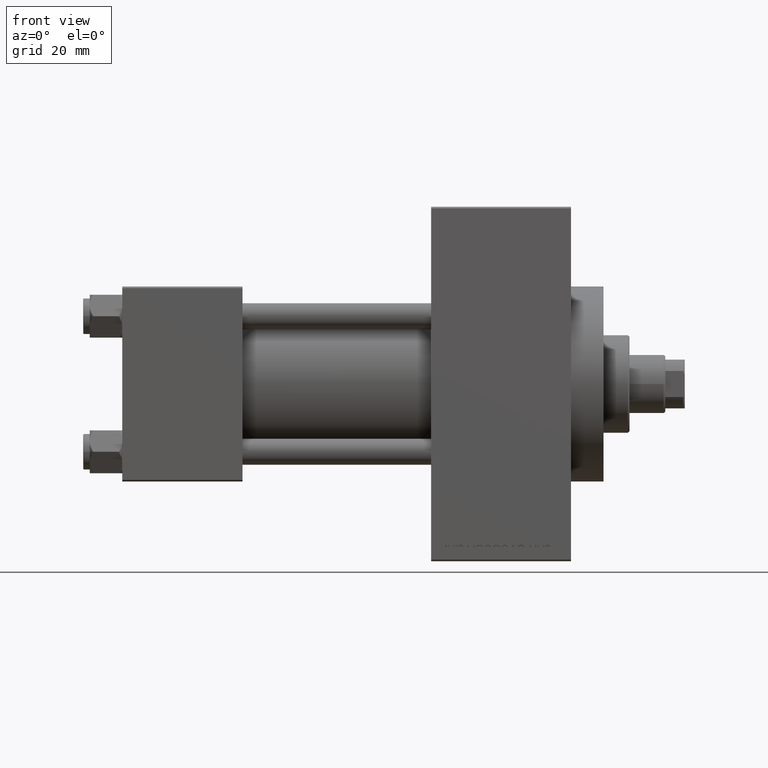
[diagram: clean part render]
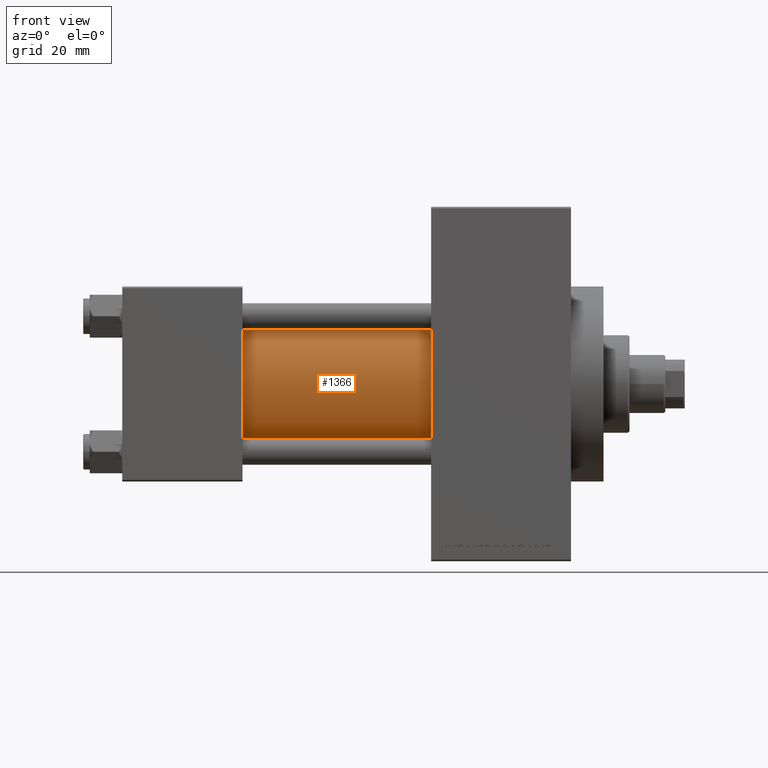
[diagram: same view with one face highlighted and labeled with its STEP entity id]
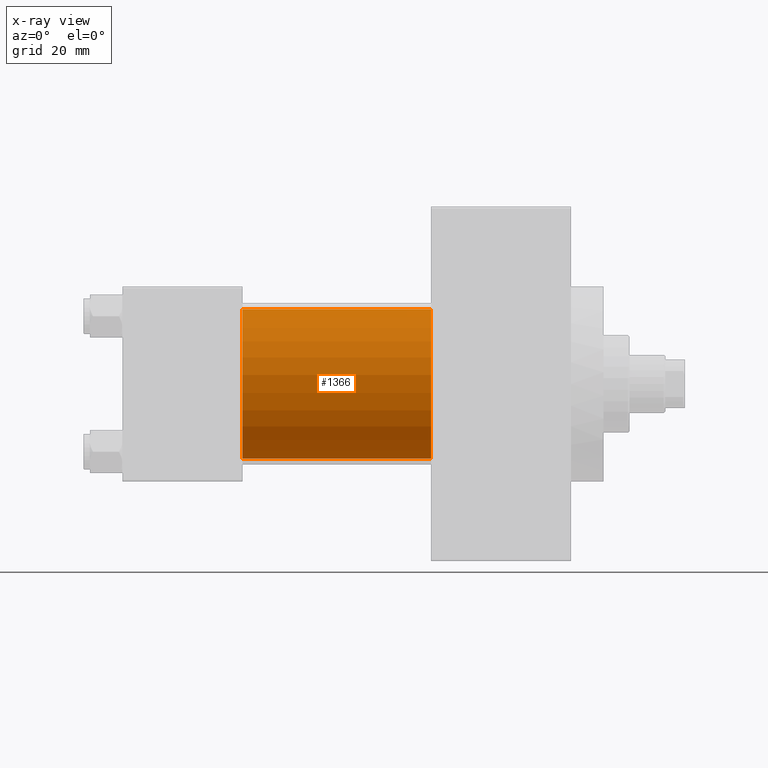
[diagram: x-ray of the same camera — body ghosted, the highlighted face saturated]
A machine part, front view. The second image highlights one B-rep face of the part: STEP entity #1366.
The next image is the same camera in x-ray: the body ghosted, the highlighted face saturated — about 0% of this face is hidden behind the body in this view.
In plain terms, the highlighted cylindrical surface (partial cylindrical patch) has radius 23 mm, axis along (-1, -0, -0).
Its self-contained STEP definition (entity closure, byte-faithful):
#453 = VECTOR ( 'NONE', #40718, 1000.000000000000000 ) ;
#1366 = ADVANCED_FACE ( 'NONE', ( #14664 ), #26686, .T. ) ;
#2426 = CIRCLE ( 'NONE', #30418, 23.00000000000000000 ) ;
#3891 = DIRECTION ( 'NONE',  ( -1.000000000000000000, -0.000000000000000000, -0.000000000000000000 ) ) ;
#4027 = DIRECTION ( 'NONE',  ( 1.000000000000000000, -0.000000000000000000, 0.000000000000000000 ) ) ;
#4964 = EDGE_CURVE ( 'NONE', #38718, #9677, #40766, .T. ) ;
#9677 = VERTEX_POINT ( 'NONE', #34973 ) ;
#9813 = ORIENTED_EDGE ( 'NONE', *, *, #24606, .T. ) ;
#10183 = CARTESIAN_POINT ( 'NONE',  ( 95.00000000000000000, -2.602085213965210642E-15, 23.00000000000000000 ) ) ;
#11277 = AXIS2_PLACEMENT_3D ( 'NONE', #37448, #3891, #19167 ) ;
#11545 = CARTESIAN_POINT ( 'NONE',  ( 37.00000000000000000, -2.602085213965210642E-15, 0.000000000000000000 ) ) ;
#13450 = LINE ( 'NONE', #10183, #453 ) ;
#14027 = EDGE_LOOP ( 'NONE', ( #23193, #22940, #48201, #9813 ) ) ;
#14664 = FACE_OUTER_BOUND ( 'NONE', #14027, .T. ) ;
#17729 = CIRCLE ( 'NONE', #47355, 23.00000000000000000 ) ;
#19167 = DIRECTION ( 'NONE',  ( 0.000000000000000000, 0.000000000000000000, 1.000000000000000000 ) ) ;
#22940 = ORIENTED_EDGE ( 'NONE', *, *, #26947, .F. ) ;
#23193 = ORIENTED_EDGE ( 'NONE', *, *, #4964, .F. ) ;
#24606 = EDGE_CURVE ( 'NONE', #26132, #9677, #2426, .T. ) ;
#26132 = VERTEX_POINT ( 'NONE', #37896 ) ;
#26686 = CYLINDRICAL_SURFACE ( 'NONE', #11277, 23.00000000000000000 ) ;
#26829 = DIRECTION ( 'NONE',  ( 0.000000000000000000, 0.000000000000000000, 1.000000000000000000 ) ) ;
#26947 = EDGE_CURVE ( 'NONE', #48203, #38718, #17729, .T. ) ;
#30390 = CARTESIAN_POINT ( 'NONE',  ( 95.00000000000000000, -2.602085213965210642E-15, 0.000000000000000000 ) ) ;
#30418 = AXIS2_PLACEMENT_3D ( 'NONE', #11545, #4027, #26829 ) ;
#31170 = CARTESIAN_POINT ( 'NONE',  ( 95.00000000000000000, 2.146024240737012665E-16, -23.00000000000000000 ) ) ;
#33273 = DIRECTION ( 'NONE',  ( -1.000000000000000000, -0.000000000000000000, -0.000000000000000000 ) ) ;
#34973 = CARTESIAN_POINT ( 'NONE',  ( 37.00000000000000000, 2.146024240737012665E-16, -23.00000000000000000 ) ) ;
#35432 = VECTOR ( 'NONE', #33273, 1000.000000000000000 ) ;
#36551 = CARTESIAN_POINT ( 'NONE',  ( 95.00000000000000000, -2.602085213965210642E-15, 23.00000000000000000 ) ) ;
#37448 = CARTESIAN_POINT ( 'NONE',  ( 95.00000000000000000, -2.602085213965210642E-15, 0.000000000000000000 ) ) ;
#37896 = CARTESIAN_POINT ( 'NONE',  ( 37.00000000000000000, -2.602085213965210642E-15, 23.00000000000000000 ) ) ;
#38718 = VERTEX_POINT ( 'NONE', #31170 ) ;
#40718 = DIRECTION ( 'NONE',  ( -1.000000000000000000, -0.000000000000000000, -0.000000000000000000 ) ) ;
#40766 = LINE ( 'NONE', #42212, #35432 ) ;
#42212 = CARTESIAN_POINT ( 'NONE',  ( 95.00000000000000000, 2.146024240737012665E-16, -23.00000000000000000 ) ) ;
#45667 = DIRECTION ( 'NONE',  ( 0.000000000000000000, 0.000000000000000000, -1.000000000000000000 ) ) ;
#47355 = AXIS2_PLACEMENT_3D ( 'NONE', #30390, #48925, #45667 ) ;
#48201 = ORIENTED_EDGE ( 'NONE', *, *, #48671, .T. ) ;
#48203 = VERTEX_POINT ( 'NONE', #36551 ) ;
#48671 = EDGE_CURVE ( 'NONE', #48203, #26132, #13450, .T. ) ;
#48925 = DIRECTION ( 'NONE',  ( 1.000000000000000000, 0.000000000000000000, 0.000000000000000000 ) ) ;